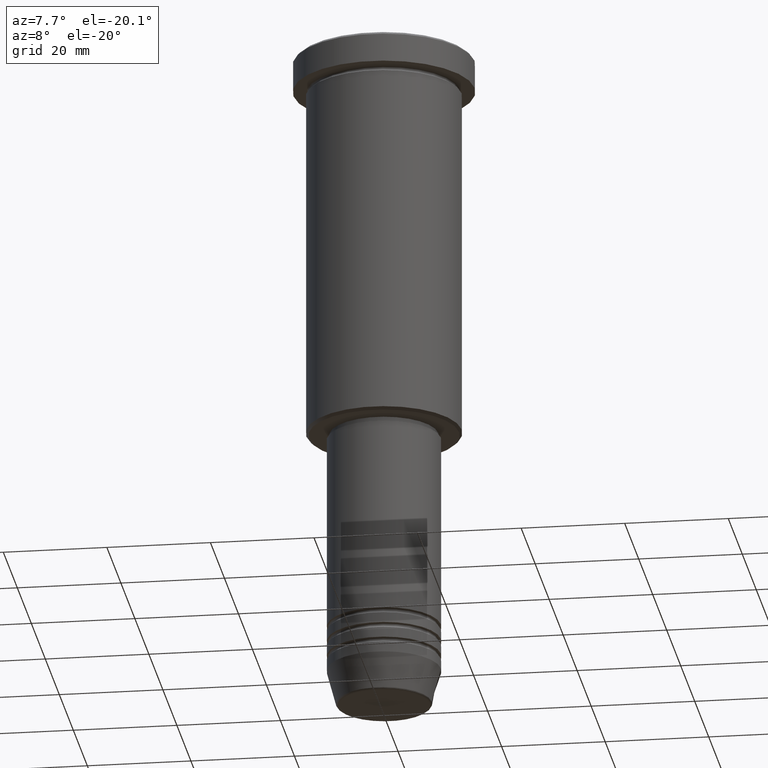
[diagram: clean part render]
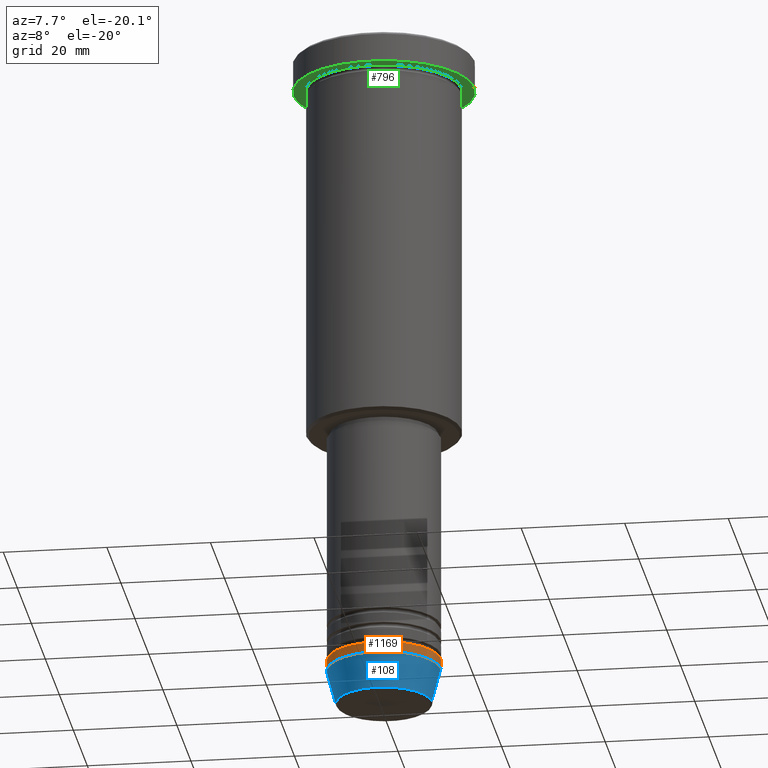
[diagram: same view with three faces highlighted in distinct colors, each labeled with its STEP entity id]
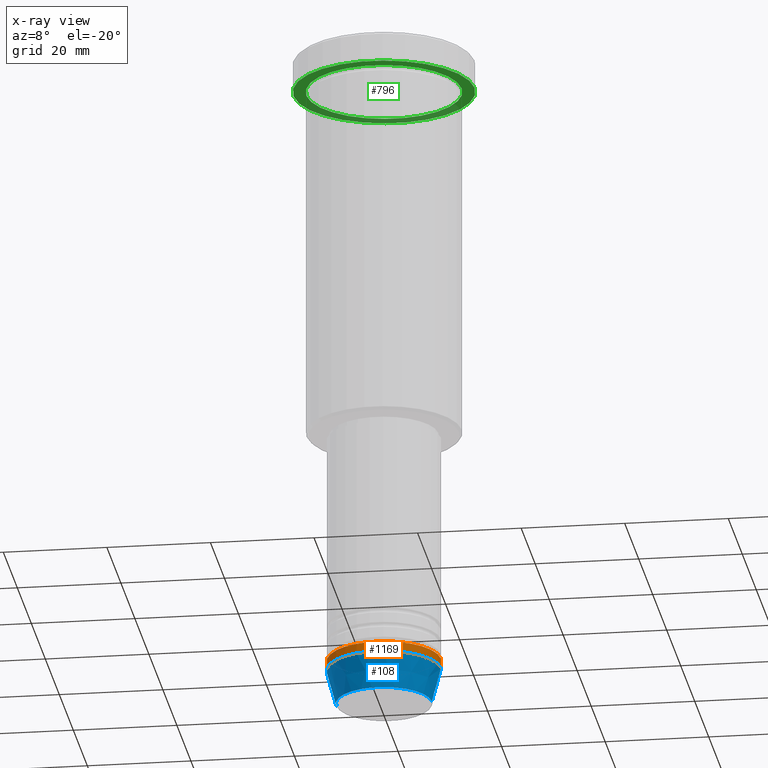
[diagram: x-ray of the same camera — body ghosted, the three highlighted faces saturated]
A machine part, auxiliary view with three faces highlighted in distinct colors.
The next image is the same camera in x-ray (body ghosted, the three faces saturated) — at least one of them is partly hidden behind the body in this view.
Their STEP definitions:

[orange] entity #1169 — the highlighted cylindrical surface (partial cylindrical patch) has radius 11 mm, axis along (-0, -0, 1).
#21 = CARTESIAN_POINT ( 'NONE',  ( 11.00000000000000000, 0.000000000000000000, -122.0000000000000000 ) ) ;
#42 = LINE ( 'NONE', #990, #52 ) ;
#52 = VECTOR ( 'NONE', #170, 1000.000000000000000 ) ;
#54 = ORIENTED_EDGE ( 'NONE', *, *, #92, .F. ) ;
#70 = VERTEX_POINT ( 'NONE', #21 ) ;
#92 = EDGE_CURVE ( 'NONE', #940, #70, #268, .T. ) ;
#105 = CIRCLE ( 'NONE', #1071, 11.00000000000000000 ) ;
#113 = DIRECTION ( 'NONE',  ( -0.000000000000000000, -0.000000000000000000, 1.000000000000000000 ) ) ;
#142 = DIRECTION ( 'NONE',  ( -0.000000000000000000, -0.000000000000000000, 1.000000000000000000 ) ) ;
#170 = DIRECTION ( 'NONE',  ( -0.000000000000000000, -0.000000000000000000, 1.000000000000000000 ) ) ;
#177 = CARTESIAN_POINT ( 'NONE',  ( -11.00000000000000000, 1.347111479062088405E-15, -124.0000000000000000 ) ) ;
#206 = CARTESIAN_POINT ( 'NONE',  ( 0.000000000000000000, 0.000000000000000000, -124.0000000000000000 ) ) ;
#268 = CIRCLE ( 'NONE', #452, 11.00000000000000000 ) ;
#295 = CARTESIAN_POINT ( 'NONE',  ( -11.00000000000000000, 1.347111479062088405E-15, -122.0000000000000000 ) ) ;
#299 = ORIENTED_EDGE ( 'NONE', *, *, #1045, .F. ) ;
#327 = FACE_OUTER_BOUND ( 'NONE', #662, .T. ) ;
#362 = VECTOR ( 'NONE', #1097, 1000.000000000000000 ) ;
#403 = CYLINDRICAL_SURFACE ( 'NONE', #670, 11.00000000000000000 ) ;
#452 = AXIS2_PLACEMENT_3D ( 'NONE', #668, #917, #765 ) ;
#575 = VERTEX_POINT ( 'NONE', #648 ) ;
#623 = ORIENTED_EDGE ( 'NONE', *, *, #1134, .T. ) ;
#648 = CARTESIAN_POINT ( 'NONE',  ( 11.00000000000000000, 0.000000000000000000, -124.0000000000000000 ) ) ;
#662 = EDGE_LOOP ( 'NONE', ( #299, #1090, #623, #54 ) ) ;
#668 = CARTESIAN_POINT ( 'NONE',  ( 0.000000000000000000, 0.000000000000000000, -122.0000000000000000 ) ) ;
#670 = AXIS2_PLACEMENT_3D ( 'NONE', #778, #113, #1115 ) ;
#671 = VERTEX_POINT ( 'NONE', #177 ) ;
#738 = EDGE_CURVE ( 'NONE', #671, #575, #105, .T. ) ;
#765 = DIRECTION ( 'NONE',  ( 1.000000000000000000, 0.000000000000000000, 0.000000000000000000 ) ) ;
#778 = CARTESIAN_POINT ( 'NONE',  ( 0.000000000000000000, 0.000000000000000000, 0.000000000000000000 ) ) ;
#834 = CARTESIAN_POINT ( 'NONE',  ( -11.00000000000000000, 1.347111479062088405E-15, 0.000000000000000000 ) ) ;
#917 = DIRECTION ( 'NONE',  ( -0.000000000000000000, -0.000000000000000000, 1.000000000000000000 ) ) ;
#931 = DIRECTION ( 'NONE',  ( 1.000000000000000000, 0.000000000000000000, 0.000000000000000000 ) ) ;
#940 = VERTEX_POINT ( 'NONE', #295 ) ;
#990 = CARTESIAN_POINT ( 'NONE',  ( 11.00000000000000000, 0.000000000000000000, 0.000000000000000000 ) ) ;
#1045 = EDGE_CURVE ( 'NONE', #671, #940, #1082, .T. ) ;
#1071 = AXIS2_PLACEMENT_3D ( 'NONE', #206, #142, #931 ) ;
#1082 = LINE ( 'NONE', #834, #362 ) ;
#1090 = ORIENTED_EDGE ( 'NONE', *, *, #738, .T. ) ;
#1097 = DIRECTION ( 'NONE',  ( -0.000000000000000000, -0.000000000000000000, 1.000000000000000000 ) ) ;
#1115 = DIRECTION ( 'NONE',  ( 1.000000000000000000, 0.000000000000000000, 0.000000000000000000 ) ) ;
#1134 = EDGE_CURVE ( 'NONE', #575, #70, #42, .T. ) ;
#1169 = ADVANCED_FACE ( 'NONE', ( #327 ), #403, .T. ) ;

[blue] entity #108 — the highlighted conical surface has half-angle 15 deg.
#6 = EDGE_CURVE ( 'NONE', #1098, #575, #980, .T. ) ;
#94 = DIRECTION ( 'NONE',  ( -0.000000000000000000, -0.000000000000000000, 1.000000000000000000 ) ) ;
#105 = CIRCLE ( 'NONE', #1071, 11.00000000000000000 ) ;
#108 = ADVANCED_FACE ( 'NONE', ( #290 ), #1110, .T. ) ;
#114 = CARTESIAN_POINT ( 'NONE',  ( 0.000000000000000000, 0.000000000000000000, -130.6294095225512422 ) ) ;
#130 = ORIENTED_EDGE ( 'NONE', *, *, #577, .T. ) ;
#142 = DIRECTION ( 'NONE',  ( -0.000000000000000000, -0.000000000000000000, 1.000000000000000000 ) ) ;
#160 = ORIENTED_EDGE ( 'NONE', *, *, #896, .F. ) ;
#177 = CARTESIAN_POINT ( 'NONE',  ( -11.00000000000000000, 1.347111479062088405E-15, -124.0000000000000000 ) ) ;
#204 = DIRECTION ( 'NONE',  ( 1.000000000000000000, 0.000000000000000000, 0.000000000000000000 ) ) ;
#206 = CARTESIAN_POINT ( 'NONE',  ( 0.000000000000000000, 0.000000000000000000, -124.0000000000000000 ) ) ;
#290 = FACE_OUTER_BOUND ( 'NONE', #798, .T. ) ;
#296 = CARTESIAN_POINT ( 'NONE',  ( 9.223655072137187716, 0.000000000000000000, -130.6294095225512422 ) ) ;
#383 = CARTESIAN_POINT ( 'NONE',  ( -11.00000000000000000, 1.347111479062088405E-15, -124.0000000000000000 ) ) ;
#423 = VERTEX_POINT ( 'NONE', #534 ) ;
#512 = CIRCLE ( 'NONE', #551, 9.223655072137187716 ) ;
#534 = CARTESIAN_POINT ( 'NONE',  ( -9.223655072137187716, 1.238341722557647004E-15, -130.6294095225512422 ) ) ;
#551 = AXIS2_PLACEMENT_3D ( 'NONE', #114, #94, #832 ) ;
#575 = VERTEX_POINT ( 'NONE', #648 ) ;
#577 = EDGE_CURVE ( 'NONE', #423, #1098, #512, .T. ) ;
#627 = CARTESIAN_POINT ( 'NONE',  ( 11.00000000000000000, 0.000000000000000000, -124.0000000000000000 ) ) ;
#648 = CARTESIAN_POINT ( 'NONE',  ( 11.00000000000000000, 0.000000000000000000, -124.0000000000000000 ) ) ;
#671 = VERTEX_POINT ( 'NONE', #177 ) ;
#725 = VECTOR ( 'NONE', #1159, 1000.000000000000000 ) ;
#738 = EDGE_CURVE ( 'NONE', #671, #575, #105, .T. ) ;
#749 = DIRECTION ( 'NONE',  ( -0.2588190451025213501, 3.169619151431772337E-17, 0.9659258262890680902 ) ) ;
#798 = EDGE_LOOP ( 'NONE', ( #160, #130, #999, #1117 ) ) ;
#832 = DIRECTION ( 'NONE',  ( 1.000000000000000000, 0.000000000000000000, 0.000000000000000000 ) ) ;
#850 = LINE ( 'NONE', #383, #1158 ) ;
#890 = AXIS2_PLACEMENT_3D ( 'NONE', #1010, #1026, #204 ) ;
#896 = EDGE_CURVE ( 'NONE', #423, #671, #850, .T. ) ;
#931 = DIRECTION ( 'NONE',  ( 1.000000000000000000, 0.000000000000000000, 0.000000000000000000 ) ) ;
#980 = LINE ( 'NONE', #627, #725 ) ;
#999 = ORIENTED_EDGE ( 'NONE', *, *, #6, .T. ) ;
#1010 = CARTESIAN_POINT ( 'NONE',  ( 0.000000000000000000, 0.000000000000000000, -124.0000000000000000 ) ) ;
#1026 = DIRECTION ( 'NONE',  ( -0.000000000000000000, -0.000000000000000000, 1.000000000000000000 ) ) ;
#1071 = AXIS2_PLACEMENT_3D ( 'NONE', #206, #142, #931 ) ;
#1098 = VERTEX_POINT ( 'NONE', #296 ) ;
#1110 = CONICAL_SURFACE ( 'NONE', #890, 11.00000000000000000, 0.2617993877991500740 ) ;
#1117 = ORIENTED_EDGE ( 'NONE', *, *, #738, .F. ) ;
#1158 = VECTOR ( 'NONE', #749, 1000.000000000000000 ) ;
#1159 = DIRECTION ( 'NONE',  ( 0.2588190451025213501, 0.000000000000000000, 0.9659258262890680902 ) ) ;

[green] entity #796 — the highlighted planar face has unit normal (0, 0, -1).
#46 = DIRECTION ( 'NONE',  ( 1.000000000000000000, 0.000000000000000000, 0.000000000000000000 ) ) ;
#48 = CIRCLE ( 'NONE', #855, 15.00000000000000000 ) ;
#64 = PLANE ( 'NONE',  #344 ) ;
#66 = CIRCLE ( 'NONE', #987, 17.50000000000000000 ) ;
#69 = CIRCLE ( 'NONE', #746, 17.50000000000000000 ) ;
#72 = DIRECTION ( 'NONE',  ( 0.000000000000000000, 0.000000000000000000, -1.000000000000000000 ) ) ;
#74 = CARTESIAN_POINT ( 'NONE',  ( 0.000000000000000000, 0.000000000000000000, -5.999999999999995559 ) ) ;
#97 = EDGE_CURVE ( 'NONE', #348, #263, #48, .T. ) ;
#116 = DIRECTION ( 'NONE',  ( -0.000000000000000000, -0.000000000000000000, 1.000000000000000000 ) ) ;
#172 = CARTESIAN_POINT ( 'NONE',  ( 0.000000000000000000, 17.50000000000000000, -5.999999999999995559 ) ) ;
#233 = CIRCLE ( 'NONE', #895, 15.00000000000000000 ) ;
#235 = CARTESIAN_POINT ( 'NONE',  ( 0.000000000000000000, 0.000000000000000000, -5.999999999999995559 ) ) ;
#263 = VERTEX_POINT ( 'NONE', #859 ) ;
#277 = FACE_BOUND ( 'NONE', #1053, .T. ) ;
#329 = DIRECTION ( 'NONE',  ( -1.000000000000000000, 0.000000000000000000, 0.000000000000000000 ) ) ;
#332 = EDGE_CURVE ( 'NONE', #1076, #836, #66, .T. ) ;
#333 = DIRECTION ( 'NONE',  ( -0.000000000000000000, -0.000000000000000000, 1.000000000000000000 ) ) ;
#344 = AXIS2_PLACEMENT_3D ( 'NONE', #172, #72, #543 ) ;
#348 = VERTEX_POINT ( 'NONE', #879 ) ;
#414 = CARTESIAN_POINT ( 'NONE',  ( 17.50000000000000000, 0.000000000000000000, -5.999999999999995559 ) ) ;
#532 = CARTESIAN_POINT ( 'NONE',  ( 0.000000000000000000, 0.000000000000000000, -5.999999999999995559 ) ) ;
#543 = DIRECTION ( 'NONE',  ( -1.000000000000000000, 0.000000000000000000, -0.000000000000000000 ) ) ;
#547 = EDGE_LOOP ( 'NONE', ( #630, #580 ) ) ;
#580 = ORIENTED_EDGE ( 'NONE', *, *, #1072, .F. ) ;
#597 = DIRECTION ( 'NONE',  ( 1.000000000000000000, 0.000000000000000000, 0.000000000000000000 ) ) ;
#630 = ORIENTED_EDGE ( 'NONE', *, *, #332, .F. ) ;
#746 = AXIS2_PLACEMENT_3D ( 'NONE', #532, #956, #46 ) ;
#796 = ADVANCED_FACE ( 'NONE', ( #277, #996 ), #64, .T. ) ;
#836 = VERTEX_POINT ( 'NONE', #1052 ) ;
#855 = AXIS2_PLACEMENT_3D ( 'NONE', #1096, #116, #930 ) ;
#859 = CARTESIAN_POINT ( 'NONE',  ( 15.00000000000000000, 1.836970198721029589E-15, -5.999999999999994671 ) ) ;
#879 = CARTESIAN_POINT ( 'NONE',  ( -15.00000000000000000, 0.000000000000000000, -5.999999999999994671 ) ) ;
#882 = ORIENTED_EDGE ( 'NONE', *, *, #97, .T. ) ;
#895 = AXIS2_PLACEMENT_3D ( 'NONE', #74, #1135, #329 ) ;
#930 = DIRECTION ( 'NONE',  ( -1.000000000000000000, 0.000000000000000000, 0.000000000000000000 ) ) ;
#956 = DIRECTION ( 'NONE',  ( -0.000000000000000000, -0.000000000000000000, 1.000000000000000000 ) ) ;
#987 = AXIS2_PLACEMENT_3D ( 'NONE', #235, #333, #597 ) ;
#996 = FACE_OUTER_BOUND ( 'NONE', #547, .T. ) ;
#1052 = CARTESIAN_POINT ( 'NONE',  ( -17.50000000000000000, 2.143131898507868248E-15, -5.999999999999995559 ) ) ;
#1053 = EDGE_LOOP ( 'NONE', ( #882, #1062 ) ) ;
#1062 = ORIENTED_EDGE ( 'NONE', *, *, #1079, .T. ) ;
#1072 = EDGE_CURVE ( 'NONE', #836, #1076, #69, .T. ) ;
#1076 = VERTEX_POINT ( 'NONE', #414 ) ;
#1079 = EDGE_CURVE ( 'NONE', #263, #348, #233, .T. ) ;
#1096 = CARTESIAN_POINT ( 'NONE',  ( 0.000000000000000000, 0.000000000000000000, -5.999999999999995559 ) ) ;
#1135 = DIRECTION ( 'NONE',  ( -0.000000000000000000, -0.000000000000000000, 1.000000000000000000 ) ) ;